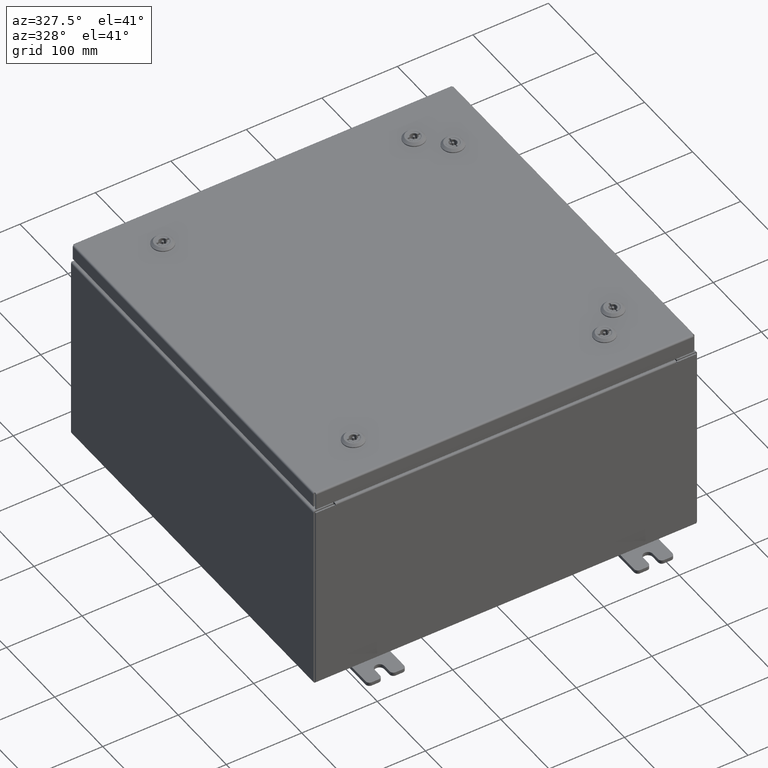
[diagram: clean part render]
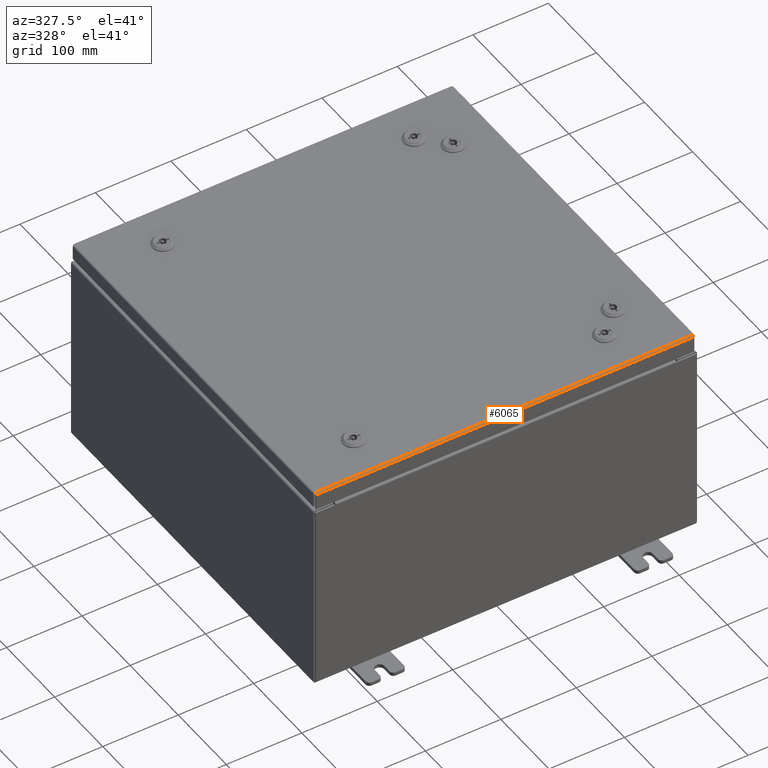
[diagram: same view with one face highlighted and labeled with its STEP entity id]
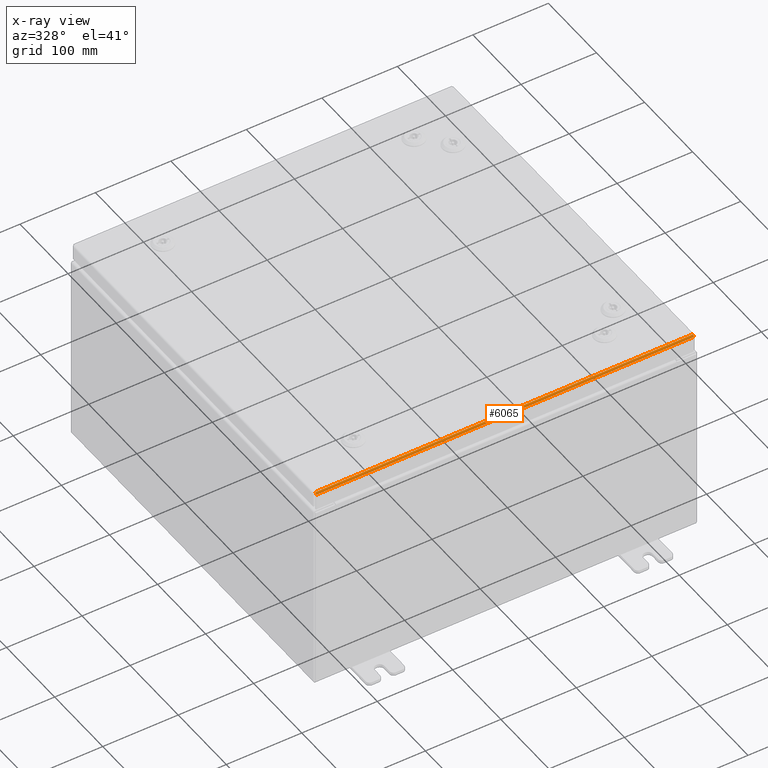
[diagram: x-ray of the same camera — body ghosted, the highlighted face saturated]
A machine part, auxiliary view. The second image highlights one B-rep face of the part: STEP entity #6065.
The next image is the same camera in x-ray: the body ghosted, the highlighted face saturated — about 0% of this face is hidden behind the body in this view.
In plain terms, the highlighted cylindrical surface (edge-blend (fillet) strip) has radius 2.2276 mm, axis along (-1, 0, 0).
Its self-contained STEP definition (entity closure, byte-faithful):
#717 = CARTESIAN_POINT ( 'NONE',  ( -9.849799999999996600, -9.849800000000001900, -2.048885995248197400E-016 ) ) ;
#2042 = CARTESIAN_POINT ( 'NONE',  ( 9.849609644062713400, -9.872755289458313000, -0.002282596256188922100 ) ) ;
#2387 = ORIENTED_EDGE ( 'NONE', *, *, #14470, .T. ) ;
#6065 = ADVANCED_FACE ( 'NONE', ( #37977 ), #11927, .T. ) ;
#6963 = CARTESIAN_POINT ( 'NONE',  ( 9.849324110156775400, -9.903695747341801700, -0.01756921792167977900 ) ) ;
#7107 = DIRECTION ( 'NONE',  ( 0.0000000000000000000, -1.000000000000000000, 2.530931008953486200E-015 ) ) ;
#9121 = DIRECTION ( 'NONE',  ( 1.000000000000000000, 3.132763603081818100E-031, -7.843572268217993600E-046 ) ) ;
#9842 = ORIENTED_EDGE ( 'NONE', *, *, #32260, .F. ) ;
#10339 = CARTESIAN_POINT ( 'NONE',  ( -9.848657864376264100, -9.937500000000001800, -0.08770000000000008300 ) ) ;
#10436 = B_SPLINE_CURVE_WITH_KNOTS ( 'NONE', 3,
 ( #26381, #31341, #2042, #36281, #6963, #41230, #11857, #46193, #16781, #51117 ),
 .UNSPECIFIED., .F., .F.,
 ( 4, 2, 2, 2, 4 ),
 ( 0.0000000000000000000, 0.2500000000000000000, 0.5000000000000000000, 0.7500000000000000000, 1.000000000000000000 ),
 .UNSPECIFIED. ) ;
#11505 = CARTESIAN_POINT ( 'NONE',  ( -9.848657864376264100, -9.937500000000001800, -0.08770000000000008300 ) ) ;
#11857 = CARTESIAN_POINT ( 'NONE',  ( 9.849038576250842800, -9.926431066258670600, -0.04353261542147225700 ) ) ;
#11902 = EDGE_LOOP ( 'NONE', ( #32080, #9842, #2387, #13035 ) ) ;
#11927 = CYLINDRICAL_SURFACE ( 'NONE', #59921, 0.08770000000000026400 ) ;
#13035 = ORIENTED_EDGE ( 'NONE', *, *, #36891, .F. ) ;
#13557 = CARTESIAN_POINT ( 'NONE',  ( -9.849799999999996600, -9.849800000000001900, -2.048885995248197400E-016 ) ) ;
#14470 = EDGE_CURVE ( 'NONE', #57157, #20914, #29222, .T. ) ;
#15256 = CARTESIAN_POINT ( 'NONE',  ( -9.848848220313552600, -9.935217403743813200, -0.06474471054169123100 ) ) ;
#16781 = CARTESIAN_POINT ( 'NONE',  ( 9.848753042344910100, -9.937500000000001800, -0.07622009684500739800 ) ) ;
#20158 = CARTESIAN_POINT ( 'NONE',  ( -9.849133754219488800, -9.919930782078322900, -0.03380425265820010500 ) ) ;
#20914 = VERTEX_POINT ( 'NONE', #55121 ) ;
#25098 = CARTESIAN_POINT ( 'NONE',  ( -9.849419288125421400, -9.893967384578530800, -0.01106893374133176300 ) ) ;
#26381 = CARTESIAN_POINT ( 'NONE',  ( 9.849799999999996600, -9.849800000000001900, -2.048885995248197400E-016 ) ) ;
#29222 = LINE ( 'NONE', #38440, #40774 ) ;
#30009 = CARTESIAN_POINT ( 'NONE',  ( -9.849704822031354100, -9.861279903154994000, -2.045551219865306400E-016 ) ) ;
#31341 = CARTESIAN_POINT ( 'NONE',  ( 9.849704822031352300, -9.861279903154994000, -2.046885130018462200E-016 ) ) ;
#31490 = DIRECTION ( 'NONE',  ( -1.000000000000000000, 0.0000000000000000000, 0.0000000000000000000 ) ) ;
#32080 = ORIENTED_EDGE ( 'NONE', *, *, #45556, .F. ) ;
#32260 = EDGE_CURVE ( 'NONE', #57157, #36534, #47060, .T. ) ;
#36281 = CARTESIAN_POINT ( 'NONE',  ( 9.849419288125419700, -9.893967384578529000, -0.01106893374133176300 ) ) ;
#36426 = CARTESIAN_POINT ( 'NONE',  ( -9.849799999999996600, -9.849800000000001900, -0.08770000000000030500 ) ) ;
#36534 = VERTEX_POINT ( 'NONE', #13557 ) ;
#36891 = EDGE_CURVE ( 'NONE', #47218, #20914, #10436, .T. ) ;
#37977 = FACE_OUTER_BOUND ( 'NONE', #11902, .T. ) ;
#38440 = CARTESIAN_POINT ( 'NONE',  ( 9.937499999999998200, -9.937500000000001800, -0.08770000000000008300 ) ) ;
#39667 = CARTESIAN_POINT ( 'NONE',  ( -9.848753042344910100, -9.937500000000000000, -0.07622009684500737100 ) ) ;
#40774 = VECTOR ( 'NONE', #9121, 39.37007874015748100 ) ;
#41230 = CARTESIAN_POINT ( 'NONE',  ( 9.849133754219485200, -9.919930782078324700, -0.03380425265820010500 ) ) ;
#45556 = EDGE_CURVE ( 'NONE', #36534, #47218, #58199, .T. ) ;
#46193 = CARTESIAN_POINT ( 'NONE',  ( 9.848848220313550800, -9.935217403743813200, -0.06474471054169124400 ) ) ;
#47060 = B_SPLINE_CURVE_WITH_KNOTS ( 'NONE', 3,
 ( #10339, #39667, #15256, #49604, #20158, #54506, #25098, #59415, #30009, #717 ),
 .UNSPECIFIED., .F., .F.,
 ( 4, 2, 2, 2, 4 ),
 ( 0.0000000000000000000, 0.2500000000000000000, 0.5000000000000000000, 0.7500000000000000000, 1.000000000000000000 ),
 .UNSPECIFIED. ) ;
#47218 = VERTEX_POINT ( 'NONE', #59814 ) ;
#49291 = CARTESIAN_POINT ( 'NONE',  ( -9.849799999999996600, -9.849800000000001900, -2.048885995248197400E-016 ) ) ;
#49604 = CARTESIAN_POINT ( 'NONE',  ( -9.849038576250842800, -9.926431066258668800, -0.04353261542147224300 ) ) ;
#51117 = CARTESIAN_POINT ( 'NONE',  ( 9.848657864376264100, -9.937500000000001800, -0.08770000000000008300 ) ) ;
#54192 = DIRECTION ( 'NONE',  ( 1.000000000000000000, -0.0000000000000000000, -0.0000000000000000000 ) ) ;
#54506 = CARTESIAN_POINT ( 'NONE',  ( -9.849324110156771900, -9.903695747341799900, -0.01756921792167977900 ) ) ;
#55121 = CARTESIAN_POINT ( 'NONE',  ( 9.848657864376264100, -9.937500000000001800, -0.08770000000000008300 ) ) ;
#55145 = VECTOR ( 'NONE', #54192, 39.37007874015748100 ) ;
#57157 = VERTEX_POINT ( 'NONE', #11505 ) ;
#58199 = LINE ( 'NONE', #49291, #55145 ) ;
#59415 = CARTESIAN_POINT ( 'NONE',  ( -9.849609644062709900, -9.872755289458309500, -0.002282596256188921700 ) ) ;
#59814 = CARTESIAN_POINT ( 'NONE',  ( 9.849799999999996600, -9.849800000000001900, -2.048885995248197400E-016 ) ) ;
#59921 = AXIS2_PLACEMENT_3D ( 'NONE', #36426, #31490, #7107 ) ;